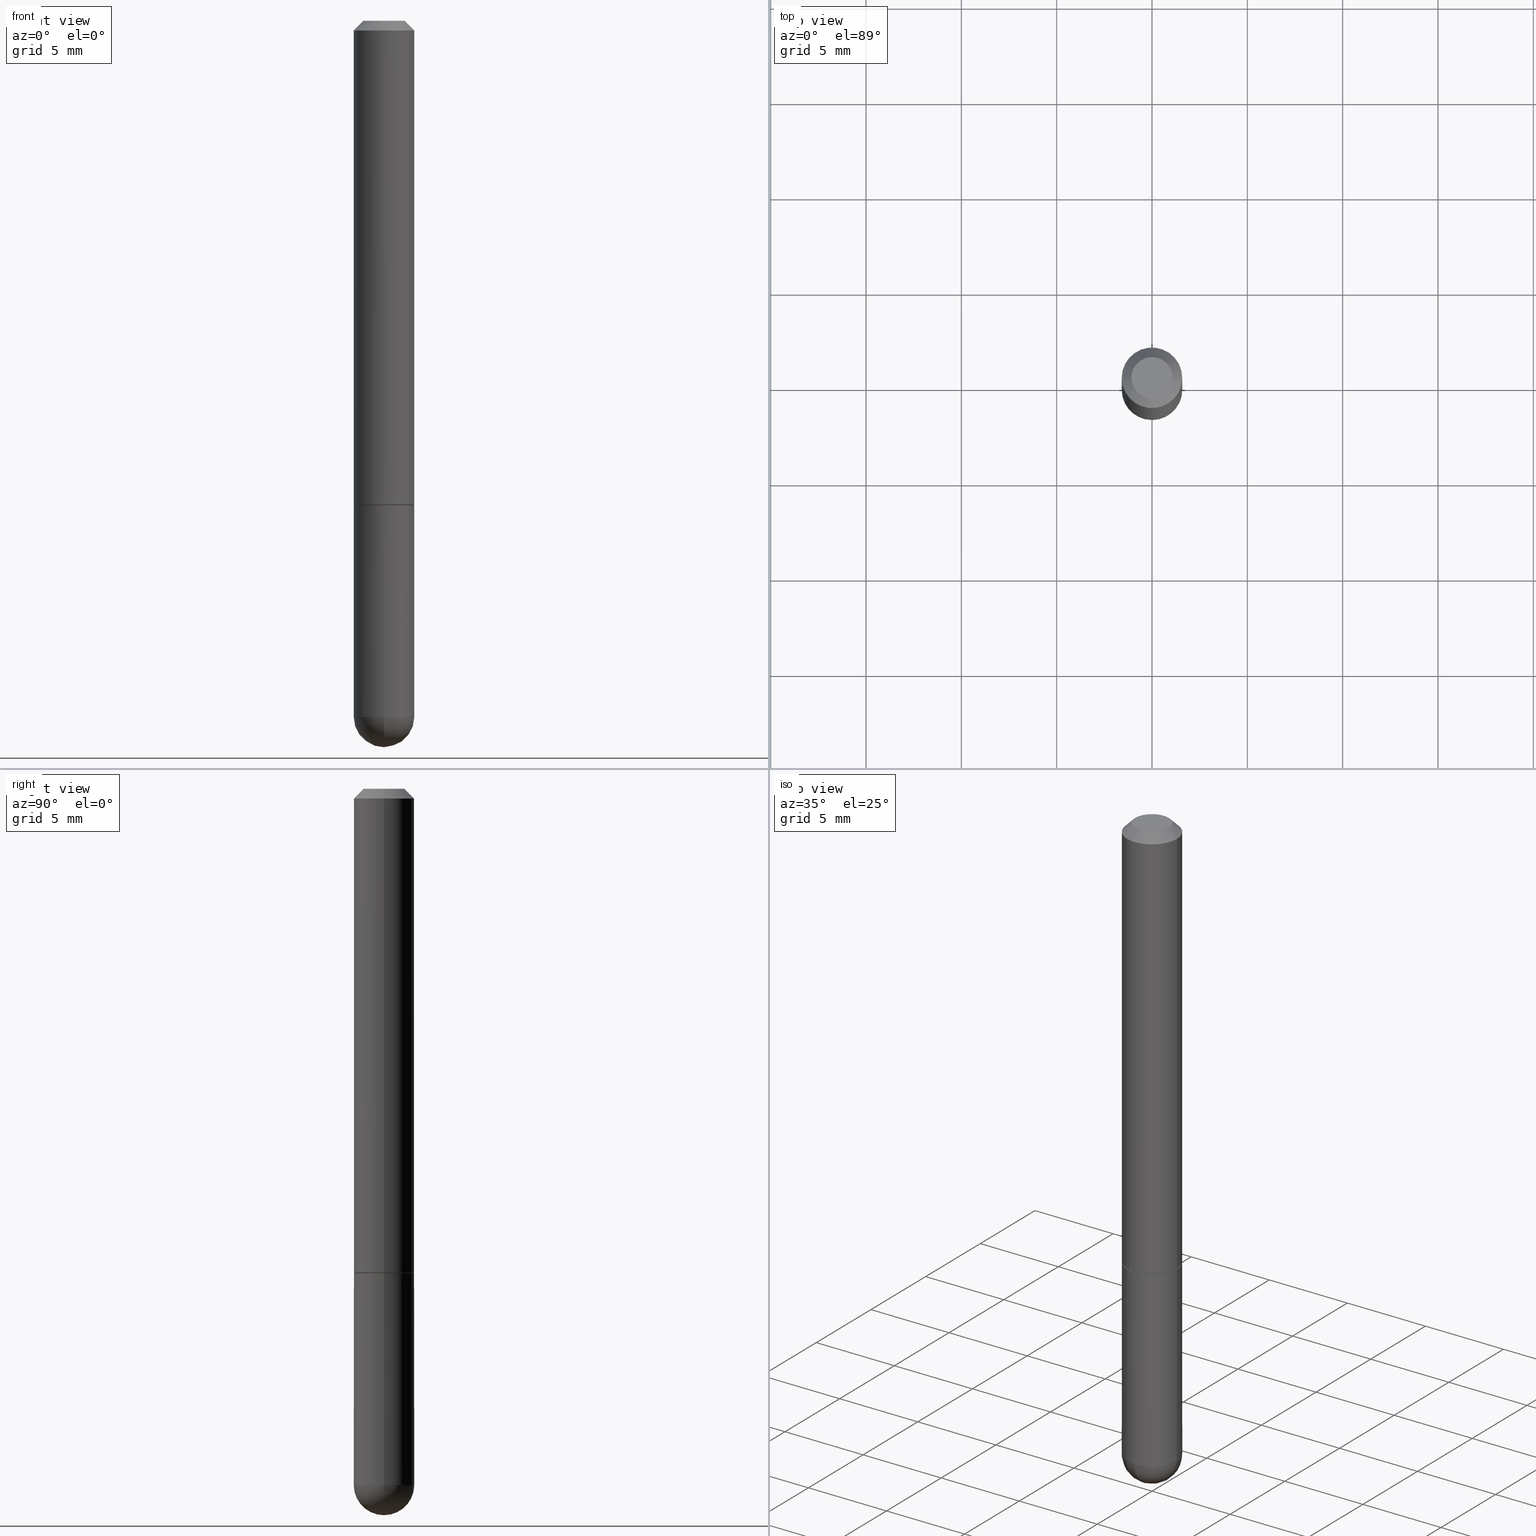
[diagram: canonical four-view strip — front | top / right | iso, engineering-drawing reading convention]
A machine part, canonical four-view strip (front | top / right | iso — engineering-drawing reading convention). The complete STEP part file that produces these views, byte-faithful:
ISO-10303-21;
HEADER;
FILE_DESCRIPTION (( 'STEP AP203' ),
    '1' );
FILE_NAME ('30904.STEP',
    '2024-02-21T16:44:44',
    ( '' ),
    ( '' ),
    'SwSTEP 2.0',
    'SolidWorks 2023',
    '' );
FILE_SCHEMA (( 'CONFIG_CONTROL_DESIGN' ));
ENDSEC;

DATA;
#1 = CARTESIAN_POINT ( 'NONE',  ( 4.890937612370289799E-31, -6.982962677686315028E-17, -0.02000000000000006981 ) ) ;
#2 = CARTESIAN_POINT ( 'NONE',  ( 2.443023337378951835E-29, -3.487989857504302970E-15, -0.9990000000000002212 ) ) ;
#3 = MANIFOLD_SOLID_BREP ( 'Body-Move/Copy2[2]', #348 ) ;
#4 = ORIENTED_EDGE ( 'NONE', *, *, #326, .F. ) ;
#5 = AXIS2_PLACEMENT_3D ( 'NONE', #233, #230, #107 ) ;
#6 = CARTESIAN_POINT ( 'NONE',  ( 0.000000000000000000, 0.000000000000000000, 0.000000000000000000 ) ) ;
#7 = EDGE_CURVE ( 'NONE', #371, #278, #324, .T. ) ;
#8 = DIRECTION ( 'NONE',  ( 1.000000000000000000, -6.982962677686269866E-15, 0.000000000000000000 ) ) ;
#9 = FACE_OUTER_BOUND ( 'NONE', #378, .T. ) ;
#10 = VERTEX_POINT ( 'NONE', #351 ) ;
#11 = VECTOR ( 'NONE', #305, 39.37007874015748143 ) ;
#12 = VECTOR ( 'NONE', #37, 39.37007874015748143 ) ;
#13 = DIRECTION ( 'NONE',  ( 1.000000000000000000, -6.982962677686266711E-15, 4.876176775795935793E-29 ) ) ;
#14 = EDGE_CURVE ( 'NONE', #289, #258, #241, .T. ) ;
#15 = APPLICATION_PROTOCOL_DEFINITION ( 'international standard', 'config_control_design', 1994, #261 ) ;
#16 = AXIS2_PLACEMENT_3D ( 'NONE', #29, #321, #267 ) ;
#17 = ORIENTED_EDGE ( 'NONE', *, *, #343, .F. ) ;
#18 = DIRECTION ( 'NONE',  ( 6.982962677686265922E-15, 1.000000000000000000, -4.370956789862807739E-15 ) ) ;
#19 = DIRECTION ( 'NONE',  ( 1.000000000000000000, 0.000000000000000000, 0.000000000000000000 ) ) ;
#20 = ORIENTED_EDGE ( 'NONE', *, *, #281, .F. ) ;
#21 = DIRECTION ( 'NONE',  ( -2.445468806185136877E-29, 3.491481338843145188E-15, 1.000000000000000000 ) ) ;
#22 = CARTESIAN_POINT ( 'NONE',  ( -5.949953061710752563E-45, 8.494956071168549013E-31, 2.433052119357234336E-16 ) ) ;
#23 = DATE_AND_TIME ( #330, #48 ) ;
#24 = APPROVAL_DATE_TIME ( #23, #119 ) ;
#25 = CARTESIAN_POINT ( 'NONE',  ( 2.445468806185136877E-29, -3.491481338843145977E-15, -1.000000000000000222 ) ) ;
#26 = AXIS2_PLACEMENT_3D ( 'NONE', #345, #369, #276 ) ;
#27 = CC_DESIGN_APPROVAL ( #255, ( #90 ) ) ;
#28 = CARTESIAN_POINT ( 'NONE',  ( -0.06250000000000000000, -3.811153671865022332E-15, -1.000000000000000222 ) ) ;
#29 = CARTESIAN_POINT ( 'NONE',  ( 0.000000000000000000, 0.000000000000000000, 0.000000000000000000 ) ) ;
#30 = ORIENTED_EDGE ( 'NONE', *, *, #364, .F. ) ;
#31 = CARTESIAN_POINT ( 'NONE',  ( 3.515361408891134418E-29, -5.019004424587023131E-15, -1.437500000000000222 ) ) ;
#32 = EDGE_CURVE ( 'NONE', #383, #155, #392, .T. ) ;
#33 = AXIS2_PLACEMENT_3D ( 'NONE', #31, #196, #294 ) ;
#34 = CARTESIAN_POINT ( 'NONE',  ( -0.06249999999999995143, 3.666055405785281740E-16, -0.02000000000000006981 ) ) ;
#35 = AXIS2_PLACEMENT_3D ( 'NONE', #76, #83, #13 ) ;
#36 = PRODUCT_DEFINITION_SHAPE ( 'NONE', 'NONE',  #213 ) ;
#37 = DIRECTION ( 'NONE',  ( -2.445468806185136877E-29, 3.491481338843145188E-15, 1.000000000000000000 ) ) ;
#38 = DIRECTION ( 'NONE',  ( 1.000000000000000000, -6.982962677686265922E-15, 4.883557194083112340E-29 ) ) ;
#39 = VERTEX_POINT ( 'NONE', #28 ) ;
#40 = DIRECTION ( 'NONE',  ( 1.000000000000000000, -6.982962677686262766E-15, 0.000000000000000000 ) ) ;
#41 = CIRCLE ( 'NONE', #98, 0.06250000000000000000 ) ;
#42 = ORIENTED_EDGE ( 'NONE', *, *, #237, .T. ) ;
#43 = DIRECTION ( 'NONE',  ( 0.000000000000000000, 0.000000000000000000, 1.000000000000000000 ) ) ;
#44 = DIRECTION ( 'NONE',  ( -2.445468806185136597E-29, 3.491481338843145583E-15, 1.000000000000000000 ) ) ;
#45 = CARTESIAN_POINT ( 'NONE',  ( 0.000000000000000000, 0.000000000000000000, 0.000000000000000000 ) ) ;
#46 = EDGE_CURVE ( 'NONE', #202, #258, #299, .T. ) ;
#47 = COORDINATED_UNIVERSAL_TIME_OFFSET ( 5, 0, .BEHIND. ) ;
#48 = LOCAL_TIME ( 11, 44, 44.00000000000000000, #362 ) ;
#49 = DIRECTION ( 'NONE',  ( 1.000000000000000000, -6.982962677686265922E-15, 4.852736867747402641E-29 ) ) ;
#50 = APPROVAL_ROLE ( '' ) ;
#51 = CARTESIAN_POINT ( 'NONE',  ( 2.445468806185136877E-29, -3.491481338843145977E-15, -1.000000000000000222 ) ) ;
#52 = PERSON_AND_ORGANIZATION_ROLE ( 'design_supplier' ) ;
#53 = FACE_OUTER_BOUND ( 'NONE', #68, .T. ) ;
#54 = AXIS2_PLACEMENT_3D ( 'NONE', #329, #291, #169 ) ;
#55 = APPROVAL_DATE_TIME ( #122, #255 ) ;
#56 = EDGE_CURVE ( 'NONE', #207, #101, #408, .T. ) ;
#57 = LINE ( 'NONE', #287, #227 ) ;
#58 = EDGE_LOOP ( 'NONE', ( #309, #260 ) ) ;
#59 = AXIS2_PLACEMENT_3D ( 'NONE', #72, #296, #8 ) ;
#60 = CC_DESIGN_APPROVAL ( #245, ( #213 ) ) ;
#61 = VERTEX_POINT ( 'NONE', #187 ) ;
#62 = CARTESIAN_POINT ( 'NONE',  ( 2.443023337378951835E-29, -3.487989857504302970E-15, -0.9990000000000002212 ) ) ;
#63 = ORIENTED_EDGE ( 'NONE', *, *, #14, .T. ) ;
#64 = ORIENTED_EDGE ( 'NONE', *, *, #56, .T. ) ;
#65 = ADVANCED_FACE ( 'NONE', ( #339 ), #366, .T. ) ;
#66 = FACE_OUTER_BOUND ( 'NONE', #411, .T. ) ;
#67 = DIRECTION ( 'NONE',  ( -2.445468806185136597E-29, 3.491481338843145583E-15, 1.000000000000000000 ) ) ;
#68 = EDGE_LOOP ( 'NONE', ( #328, #224 ) ) ;
#69 = EDGE_LOOP ( 'NONE', ( #174, #393, #360, #104 ) ) ;
#70 = CYLINDRICAL_SURFACE ( 'NONE', #106, 0.06249999999999997224 ) ;
#71 = ADVANCED_FACE ( 'NONE', ( #312 ), #164, .T. ) ;
#72 = CARTESIAN_POINT ( 'NONE',  ( 2.445468806185136877E-29, -3.491481338843145977E-15, -1.000000000000000222 ) ) ;
#73 = ORIENTED_EDGE ( 'NONE', *, *, #407, .T. ) ;
#74 = DIRECTION ( 'NONE',  ( 1.000000000000000000, -6.982962677686269866E-15, 0.000000000000000000 ) ) ;
#75 = ORIENTED_EDGE ( 'NONE', *, *, #32, .F. ) ;
#76 = CARTESIAN_POINT ( 'NONE',  ( 0.000000000000000000, 0.000000000000000000, 0.000000000000000000 ) ) ;
#77 = EDGE_CURVE ( 'NONE', #10, #39, #57, .T. ) ;
#78 = AXIS2_PLACEMENT_3D ( 'NONE', #259, #141, #388 ) ;
#79 = LOCAL_TIME ( 11, 44, 44.00000000000000000, #47 ) ;
#80 = MECHANICAL_CONTEXT ( 'NONE', #219, 'mechanical' ) ;
#81 = ADVANCED_FACE ( 'NONE', ( #53 ), #129, .F. ) ;
#82 = CARTESIAN_POINT ( 'NONE',  ( -0.06149999999999999911, -3.049199102002462361E-15, -1.000000000000000222 ) ) ;
#83 = DIRECTION ( 'NONE',  ( -2.445468806185136597E-29, 3.491481338843145583E-15, 1.000000000000000000 ) ) ;
#84 = CARTESIAN_POINT ( 'NONE',  ( -4.440892098500294840E-16, -0.06250000000000532907, -1.437500000000000000 ) ) ;
#85 = VECTOR ( 'NONE', #87, 39.37007874015748143 ) ;
#86 = AXIS2_PLACEMENT_3D ( 'NONE', #151, #43, #19 ) ;
#87 = DIRECTION ( 'NONE',  ( -2.445468806185136877E-29, 3.491481338843145188E-15, 1.000000000000000000 ) ) ;
#88 = FACE_OUTER_BOUND ( 'NONE', #69, .T. ) ;
#89 = CIRCLE ( 'NONE', #142, 0.06249999999999995143 ) ;
#90 = SECURITY_CLASSIFICATION ( '', '', #94 ) ;
#91 = COORDINATED_UNIVERSAL_TIME_OFFSET ( 5, 0, .BEHIND. ) ;
#92 = EDGE_CURVE ( 'NONE', #278, #258, #290, .T. ) ;
#93 = EDGE_LOOP ( 'NONE', ( #30, #229, #300, #363 ) ) ;
#94 = SECURITY_CLASSIFICATION_LEVEL ( 'unclassified' ) ;
#95 = FACE_OUTER_BOUND ( 'NONE', #93, .T. ) ;
#96 = ORIENTED_EDGE ( 'NONE', *, *, #237, .F. ) ;
#97 = PLANE ( 'NONE',  #157 ) ;
#98 = AXIS2_PLACEMENT_3D ( 'NONE', #51, #191, #338 ) ;
#99 =( GEOMETRIC_REPRESENTATION_CONTEXT ( 3 ) GLOBAL_UNCERTAINTY_ASSIGNED_CONTEXT ( ( #395 ) ) GLOBAL_UNIT_ASSIGNED_CONTEXT ( ( #238, #244, #209 ) ) REPRESENTATION_CONTEXT ( 'NONE', 'WORKASPACE' ) );
#100 = FACE_OUTER_BOUND ( 'NONE', #402, .T. ) ;
#101 = VERTEX_POINT ( 'NONE', #84 ) ;
#102 = DIRECTION ( 'NONE',  ( 1.000000000000000000, -6.982962677686265922E-15, 4.876176775795935793E-29 ) ) ;
#103 = PRODUCT_RELATED_PRODUCT_CATEGORY ( 'detail', '', ( #134 ) ) ;
#104 = ORIENTED_EDGE ( 'NONE', *, *, #7, .F. ) ;
#105 = FACE_OUTER_BOUND ( 'NONE', #179, .T. ) ;
#106 = AXIS2_PLACEMENT_3D ( 'NONE', #6, #201, #322 ) ;
#107 = DIRECTION ( 'NONE',  ( 1.000000000000000000, -6.982962677686268288E-15, 0.000000000000000000 ) ) ;
#108 = ORIENTED_EDGE ( 'NONE', *, *, #77, .T. ) ;
#109 = APPROVAL_DATE_TIME ( #211, #245 ) ;
#110 = ADVANCED_FACE ( 'NONE', ( #95 ), #212, .T. ) ;
#111 = APPROVAL_ROLE ( '' ) ;
#112 = ORIENTED_EDGE ( 'NONE', *, *, #32, .T. ) ;
#113 = ADVANCED_FACE ( 'NONE', ( #88 ), #286, .T. ) ;
#114 = CIRCLE ( 'NONE', #199, 0.06250000000000013878 ) ;
#115 = DIRECTION ( 'NONE',  ( 0.7071067811866199593, -2.468850131083015945E-15, 0.7071067811864750752 ) ) ;
#116 = CARTESIAN_POINT ( 'NONE',  ( 0.06149999999999999911, -3.920933543520851632E-15, -1.000000000000000222 ) ) ;
#117 = ORIENTED_EDGE ( 'NONE', *, *, #343, .T. ) ;
#118 = CARTESIAN_POINT ( 'NONE',  ( -0.06149999999999999911, -3.054497556350684369E-15, -1.000000000000000222 ) ) ;
#119 = APPROVAL ( #337, 'UNSPECIFIED' ) ;
#120 = CARTESIAN_POINT ( 'NONE',  ( 2.445468806185136877E-29, -3.491481338843145977E-15, -1.000000000000000222 ) ) ;
#121 = DIRECTION ( 'NONE',  ( -0.7071067811866199593, 7.493145998870616062E-15, 0.7071067811864750752 ) ) ;
#122 = DATE_AND_TIME ( #379, #148 ) ;
#123 = AXIS2_PLACEMENT_3D ( 'NONE', #186, #310, #251 ) ;
#124 = DIRECTION ( 'NONE',  ( -1.000000000000000000, 7.105427357601001070E-15, -4.926315508542082329E-29 ) ) ;
#125 = CARTESIAN_POINT ( 'NONE',  ( 0.06249999999999995143, -4.986107516375835278E-16, -0.02000000000000006981 ) ) ;
#126 = PERSON_AND_ORGANIZATION_ROLE ( 'classification_officer' ) ;
#127 = EDGE_CURVE ( 'NONE', #383, #278, #181, .T. ) ;
#128 = LOCAL_TIME ( 11, 44, 44.00000000000000000, #277 ) ;
#129 = PLANE ( 'NONE',  #147 ) ;
#130 = DESIGN_CONTEXT ( 'detailed design', #261, 'design' ) ;
#131 = ORIENTED_EDGE ( 'NONE', *, *, #359, .F. ) ;
#132 = CC_DESIGN_PERSON_AND_ORGANIZATION_ASSIGNMENT ( #283, #52, ( #250 ) ) ;
#133 = DIRECTION ( 'NONE',  ( -2.445468806185136597E-29, 3.491481338843145583E-15, 1.000000000000000000 ) ) ;
#134 = PRODUCT ( '30904', '30904', '', ( #80 ) ) ;
#135 = CARTESIAN_POINT ( 'NONE',  ( -0.04249999999999968386, 3.316907271900965742E-16, 2.433052119357212643E-16 ) ) ;
#136 = ORIENTED_EDGE ( 'NONE', *, *, #152, .T. ) ;
#137 = VECTOR ( 'NONE', #121, 39.37007874015748143 ) ;
#138 = CC_DESIGN_PERSON_AND_ORGANIZATION_ASSIGNMENT ( #406, #126, ( #90 ) ) ;
#139 = DIRECTION ( 'NONE',  ( 1.000000000000000000, -6.982962677686270655E-15, 0.000000000000000000 ) ) ;
#140 = CARTESIAN_POINT ( 'NONE',  ( 3.339755826017505008E-29, -5.707577355157432999E-15, -1.500000000000000222 ) ) ;
#141 = DIRECTION ( 'NONE',  ( 2.438088387897960049E-29, -3.491481338843145188E-15, -1.000000000000000000 ) ) ;
#142 = AXIS2_PLACEMENT_3D ( 'NONE', #1, #361, #173 ) ;
#143 =( LENGTH_UNIT ( ) NAMED_UNIT ( * ) SI_UNIT ( $, .METRE. ) );
#144 = ORIENTED_EDGE ( 'NONE', *, *, #231, .T. ) ;
#145 = DIRECTION ( 'NONE',  ( -2.445468806185136597E-29, 3.491481338843145583E-15, 1.000000000000000000 ) ) ;
#146 = CALENDAR_DATE ( 2024, 21, 2 ) ;
#147 = AXIS2_PLACEMENT_3D ( 'NONE', #333, #243, #248 ) ;
#148 = LOCAL_TIME ( 11, 44, 44.00000000000000000, #91 ) ;
#149 = ORIENTED_EDGE ( 'NONE', *, *, #364, .T. ) ;
#150 = DIRECTION ( 'NONE',  ( -7.105427357601001859E-15, -1.000000000000000000, 0.000000000000000000 ) ) ;
#151 = CARTESIAN_POINT ( 'NONE',  ( 0.000000000000000000, 0.000000000000000000, 0.000000000000000000 ) ) ;
#152 = EDGE_CURVE ( 'NONE', #155, #371, #403, .T. ) ;
#153 = DIRECTION ( 'NONE',  ( 1.000000000000000000, -6.982962677686269866E-15, 0.000000000000000000 ) ) ;
#154 = PERSON_AND_ORGANIZATION_ROLE ( 'creator' ) ;
#155 = VERTEX_POINT ( 'NONE', #82 ) ;
#156 = DIRECTION ( 'NONE',  ( 1.000000000000000000, -6.982962677686269866E-15, 0.000000000000000000 ) ) ;
#157 = AXIS2_PLACEMENT_3D ( 'NONE', #226, #349, #102 ) ;
#158 = EDGE_LOOP ( 'NONE', ( #270, #63, #319, #17 ) ) ;
#159 = EDGE_CURVE ( 'NONE', #289, #264, #206, .T. ) ;
#160 = CARTESIAN_POINT ( 'NONE',  ( -0.06249999999999995143, 3.666055405785281740E-16, -0.02000000000000006981 ) ) ;
#161 = AXIS2_PLACEMENT_3D ( 'NONE', #2, #67, #228 ) ;
#162 = CONICAL_SURFACE ( 'NONE', #377, 0.06149999999999999911, 0.7853981633975507526 ) ;
#163 = ORIENTED_EDGE ( 'NONE', *, *, #46, .T. ) ;
#164 = SPHERICAL_SURFACE ( 'NONE', #358, 0.06250000000000018041 ) ;
#165 = SPHERICAL_SURFACE ( 'NONE', #313, 0.06250000000000018041 ) ;
#166 = ORIENTED_EDGE ( 'NONE', *, *, #171, .T. ) ;
#167 = CARTESIAN_POINT ( 'NONE',  ( 0.06250000000000013878, -3.924425024859695428E-15, -0.9990000000000002212 ) ) ;
#168 = AXIS2_PLACEMENT_3D ( 'NONE', #45, #368, #210 ) ;
#169 = DIRECTION ( 'NONE',  ( -1.000000000000000000, 6.982962677686266711E-15, 0.000000000000000000 ) ) ;
#170 = ORIENTED_EDGE ( 'NONE', *, *, #281, .T. ) ;
#171 = EDGE_CURVE ( 'NONE', #61, #410, #404, .T. ) ;
#172 = EDGE_LOOP ( 'NONE', ( #272, #268, #96, #323 ) ) ;
#173 = DIRECTION ( 'NONE',  ( 1.000000000000000000, -6.982962677686266711E-15, 0.000000000000000000 ) ) ;
#174 = ORIENTED_EDGE ( 'NONE', *, *, #152, .F. ) ;
#175 = LINE ( 'NONE', #412, #12 ) ;
#176 = AXIS2_PLACEMENT_3D ( 'NONE', #257, #124, #150 ) ;
#177 = FACE_OUTER_BOUND ( 'NONE', #242, .T. ) ;
#178 = PERSON_AND_ORGANIZATION_ROLE ( 'creator' ) ;
#179 = EDGE_LOOP ( 'NONE', ( #75, #265 ) ) ;
#180 = PERSON_AND_ORGANIZATION_ROLE ( 'design_owner' ) ;
#181 = LINE ( 'NONE', #279, #221 ) ;
#182 = CIRCLE ( 'NONE', #384, 0.06249999999999995143 ) ;
#183 = CALENDAR_DATE ( 2024, 21, 2 ) ;
#184 = APPROVAL_PERSON_ORGANIZATION ( #284, #255, #188 ) ;
#185 = VERTEX_POINT ( 'NONE', #216 ) ;
#186 = CARTESIAN_POINT ( 'NONE',  ( 4.890937612370289799E-31, -6.982962677686315028E-17, -0.02000000000000006981 ) ) ;
#187 = CARTESIAN_POINT ( 'NONE',  ( 0.06249999999999995143, -4.691678049070475040E-15, -1.437500000000000222 ) ) ;
#188 = APPROVAL_ROLE ( '' ) ;
#189 = EDGE_CURVE ( 'NONE', #410, #39, #41, .T. ) ;
#190 = COORDINATED_UNIVERSAL_TIME_OFFSET ( 5, 0, .BEHIND. ) ;
#191 = DIRECTION ( 'NONE',  ( -2.445468806185136597E-29, 3.491481338843145583E-15, 1.000000000000000000 ) ) ;
#192 = DIRECTION ( 'NONE',  ( -1.000000000000000000, 6.982962677686265922E-15, -4.883557194083112340E-29 ) ) ;
#193 = FACE_OUTER_BOUND ( 'NONE', #58, .T. ) ;
#194 = CARTESIAN_POINT ( 'NONE',  ( 3.515361408891134418E-29, -5.019004424587023131E-15, -1.437500000000000222 ) ) ;
#195 = EDGE_LOOP ( 'NONE', ( #288, #346, #117, #163 ) ) ;
#196 = DIRECTION ( 'NONE',  ( -2.445468806185136597E-29, 3.491481338843145583E-15, 1.000000000000000000 ) ) ;
#197 = EDGE_CURVE ( 'NONE', #264, #289, #331, .T. ) ;
#198 = VECTOR ( 'NONE', #382, 39.37007874015748143 ) ;
#199 = AXIS2_PLACEMENT_3D ( 'NONE', #62, #133, #139 ) ;
#200 = CIRCLE ( 'NONE', #409, 0.06250000000000018041 ) ;
#201 = DIRECTION ( 'NONE',  ( -2.445468806185136597E-29, 3.491481338843145583E-15, 1.000000000000000000 ) ) ;
#202 = VERTEX_POINT ( 'NONE', #160 ) ;
#203 = FACE_OUTER_BOUND ( 'NONE', #240, .T. ) ;
#204 = CC_DESIGN_PERSON_AND_ORGANIZATION_ASSIGNMENT ( #334, #178, ( #213 ) ) ;
#205 = PERSON_AND_ORGANIZATION ( #340, #307 ) ;
#206 = CIRCLE ( 'NONE', #341, 0.04249999999999968386 ) ;
#207 = VERTEX_POINT ( 'NONE', #140 ) ;
#208 = CC_DESIGN_DATE_AND_TIME_ASSIGNMENT ( #247, #370, ( #213 ) ) ;
#209 =( NAMED_UNIT ( * ) SI_UNIT ( $, .STERADIAN. ) SOLID_ANGLE_UNIT ( ) );
#210 = DIRECTION ( 'NONE',  ( 1.000000000000000000, -6.982962677686266711E-15, 4.876176775795935793E-29 ) ) ;
#211 = DATE_AND_TIME ( #146, #128 ) ;
#212 = CYLINDRICAL_SURFACE ( 'NONE', #168, 0.06250000000000004163 ) ;
#213 = PRODUCT_DEFINITION ( 'UNKNOWN', '', #250, #130 ) ;
#214 = PERSON_AND_ORGANIZATION ( #340, #307 ) ;
#215 = AXIS2_PLACEMENT_3D ( 'NONE', #120, #145, #40 ) ;
#216 = CARTESIAN_POINT ( 'NONE',  ( 4.364351673554256397E-16, 0.06249999999999480971, -1.437500000000000444 ) ) ;
#217 = DIRECTION ( 'NONE',  ( -2.445468806185136597E-29, 3.491481338843145583E-15, 1.000000000000000000 ) ) ;
#218 = ADVANCED_FACE ( 'NONE', ( #105 ), #97, .F. ) ;
#219 = APPLICATION_CONTEXT ( 'configuration controlled 3d designs of mechanical parts and assemblies' ) ;
#220 = DATE_TIME_ROLE ( 'classification_date' ) ;
#221 = VECTOR ( 'NONE', #115, 39.37007874015748143 ) ;
#222 = CC_DESIGN_APPROVAL ( #119, ( #250 ) ) ;
#223 = ORIENTED_EDGE ( 'NONE', *, *, #127, .F. ) ;
#224 = ORIENTED_EDGE ( 'NONE', *, *, #159, .T. ) ;
#225 = DIRECTION ( 'NONE',  ( -2.445468806185136597E-29, 3.491481338843145583E-15, 1.000000000000000000 ) ) ;
#226 = CARTESIAN_POINT ( 'NONE',  ( 2.445468806185136877E-29, -3.491481338843145977E-15, -1.000000000000000222 ) ) ;
#227 = VECTOR ( 'NONE', #21, 39.37007874015748143 ) ;
#228 = DIRECTION ( 'NONE',  ( 1.000000000000000000, -6.982962677686270655E-15, 0.000000000000000000 ) ) ;
#229 = ORIENTED_EDGE ( 'NONE', *, *, #7, .T. ) ;
#230 = DIRECTION ( 'NONE',  ( -2.445468806185136597E-29, 3.491481338843145583E-15, 1.000000000000000000 ) ) ;
#231 = EDGE_CURVE ( 'NONE', #101, #61, #182, .T. ) ;
#232 = CARTESIAN_POINT ( 'NONE',  ( 3.184241630977247611E-29, -5.493186792727071849E-15, -1.437500000000000000 ) ) ;
#233 = CARTESIAN_POINT ( 'NONE',  ( 3.515361408891134418E-29, -5.019004424587023131E-15, -1.437500000000000222 ) ) ;
#234 = CLOSED_SHELL ( 'NONE', ( #266, #285, #71, #274, #332 ) ) ;
#235 = CIRCLE ( 'NONE', #367, 0.06249999999999995143 ) ;
#236 = FACE_OUTER_BOUND ( 'NONE', #195, .T. ) ;
#237 = EDGE_CURVE ( 'NONE', #61, #185, #263, .T. ) ;
#238 =( CONVERSION_BASED_UNIT ( 'INCH', #273 ) LENGTH_UNIT ( ) NAMED_UNIT ( #353 ) );
#239 = CARTESIAN_POINT ( 'NONE',  ( 3.515361408891134418E-29, -5.019004424587023131E-15, -1.437500000000000222 ) ) ;
#240 = EDGE_LOOP ( 'NONE', ( #131, #64, #387, #292 ) ) ;
#241 = LINE ( 'NONE', #125, #256 ) ;
#242 = EDGE_LOOP ( 'NONE', ( #112, #136, #20, #223 ) ) ;
#243 = DIRECTION ( 'NONE',  ( 2.438088387897960049E-29, -3.491481338843145188E-15, -1.000000000000000000 ) ) ;
#244 =( NAMED_UNIT ( * ) PLANE_ANGLE_UNIT ( ) SI_UNIT ( $, .RADIAN. ) );
#245 = APPROVAL ( #298, 'UNSPECIFIED' ) ;
#246 = CARTESIAN_POINT ( 'NONE',  ( 0.06250000000000004163, -4.364351673553919652E-16, 3.047610484872461972E-30 ) ) ;
#247 = DATE_AND_TIME ( #183, #79 ) ;
#248 = DIRECTION ( 'NONE',  ( -1.000000000000000000, 6.982962677686265922E-15, -4.876176775795935793E-29 ) ) ;
#249 = CONICAL_SURFACE ( 'NONE', #54, 0.06249999999999995143, 0.7853981633974471688 ) ;
#250 = PRODUCT_DEFINITION_FORMATION_WITH_SPECIFIED_SOURCE ( 'ANY', '', #134, .NOT_KNOWN. ) ;
#251 = DIRECTION ( 'NONE',  ( -1.000000000000000000, 6.982962677686266711E-15, 0.000000000000000000 ) ) ;
#252 = SHAPE_DEFINITION_REPRESENTATION ( #36, #254 ) ;
#253 = CALENDAR_DATE ( 2024, 21, 2 ) ;
#254 = ADVANCED_BREP_SHAPE_REPRESENTATION ( '30904', ( #400, #3, #86 ), #99 ) ;
#255 = APPROVAL ( #342, 'UNSPECIFIED' ) ;
#256 = VECTOR ( 'NONE', #380, 39.37007874015748143 ) ;
#257 = CARTESIAN_POINT ( 'NONE',  ( 3.184241630977247611E-29, -5.493186792727071849E-15, -1.437500000000000000 ) ) ;
#258 = VERTEX_POINT ( 'NONE', #297 ) ;
#259 = CARTESIAN_POINT ( 'NONE',  ( 4.364351673554160748E-16, 0.06249999999999650974, -1.000000000000000444 ) ) ;
#260 = ORIENTED_EDGE ( 'NONE', *, *, #381, .T. ) ;
#261 = APPLICATION_CONTEXT ( 'configuration controlled 3d designs of mechanical parts and assemblies' ) ;
#262 = DIRECTION ( 'NONE',  ( 6.982962677686266711E-15, 1.000000000000000000, 0.000000000000000000 ) ) ;
#263 = CIRCLE ( 'NONE', #5, 0.06249999999999995143 ) ;
#264 = VERTEX_POINT ( 'NONE', #135 ) ;
#265 = ORIENTED_EDGE ( 'NONE', *, *, #356, .F. ) ;
#266 = ADVANCED_FACE ( 'NONE', ( #66 ), #318, .T. ) ;
#267 = DIRECTION ( 'NONE',  ( 1.000000000000000000, -6.982962677686266711E-15, 4.876176775795935793E-29 ) ) ;
#268 = ORIENTED_EDGE ( 'NONE', *, *, #359, .T. ) ;
#269 = LINE ( 'NONE', #34, #198 ) ;
#270 = ORIENTED_EDGE ( 'NONE', *, *, #159, .F. ) ;
#271 = DIRECTION ( 'NONE',  ( -2.445468806185136597E-29, 3.491481338843145583E-15, 1.000000000000000000 ) ) ;
#272 = ORIENTED_EDGE ( 'NONE', *, *, #56, .F. ) ;
#273 = LENGTH_MEASURE_WITH_UNIT ( LENGTH_MEASURE( 0.02539999999999999897 ), #143 );
#274 = ADVANCED_FACE ( 'NONE', ( #193 ), #355, .F. ) ;
#275 = PERSON_AND_ORGANIZATION ( #340, #307 ) ;
#276 = DIRECTION ( 'NONE',  ( 1.000000000000000000, -6.982962677686266711E-15, 0.000000000000000000 ) ) ;
#277 = COORDINATED_UNIVERSAL_TIME_OFFSET ( 5, 0, .BEHIND. ) ;
#278 = VERTEX_POINT ( 'NONE', #167 ) ;
#279 = CARTESIAN_POINT ( 'NONE',  ( 0.06149999999999999911, -3.920933543520851632E-15, -1.000000000000000222 ) ) ;
#280 = DATE_AND_TIME ( #253, #325 ) ;
#281 = EDGE_CURVE ( 'NONE', #278, #371, #114, .T. ) ;
#282 = CARTESIAN_POINT ( 'NONE',  ( 3.184241630977247611E-29, -5.493186792727071849E-15, -1.437500000000000000 ) ) ;
#283 = PERSON_AND_ORGANIZATION ( #340, #307 ) ;
#284 = PERSON_AND_ORGANIZATION ( #340, #307 ) ;
#285 = ADVANCED_FACE ( 'NONE', ( #203 ), #165, .T. ) ;
#286 = CONICAL_SURFACE ( 'NONE', #373, 0.06149999999999999911, 0.7853981633975507526 ) ;
#287 = CARTESIAN_POINT ( 'NONE',  ( -0.06249999999999997224, 4.440892098500624190E-16, -3.074334431409315063E-30 ) ) ;
#288 = ORIENTED_EDGE ( 'NONE', *, *, #14, .F. ) ;
#289 = VERTEX_POINT ( 'NONE', #357 ) ;
#290 = LINE ( 'NONE', #246, #11 ) ;
#291 = DIRECTION ( 'NONE',  ( 2.445468806185136597E-29, -3.491481338843145583E-15, -1.000000000000000000 ) ) ;
#292 = ORIENTED_EDGE ( 'NONE', *, *, #317, .F. ) ;
#293 = ORIENTED_EDGE ( 'NONE', *, *, #77, .F. ) ;
#294 = DIRECTION ( 'NONE',  ( 1.000000000000000000, -6.982962677686268288E-15, 0.000000000000000000 ) ) ;
#295 = CIRCLE ( 'NONE', #59, 0.06149999999999999911 ) ;
#296 = DIRECTION ( 'NONE',  ( -2.445468806185136597E-29, 3.491481338843145583E-15, 1.000000000000000000 ) ) ;
#297 = CARTESIAN_POINT ( 'NONE',  ( 0.06249999999999995143, -4.986107516375835278E-16, -0.02000000000000006981 ) ) ;
#298 = APPROVAL_STATUS ( 'not_yet_approved' ) ;
#299 = CIRCLE ( 'NONE', #26, 0.06249999999999995143 ) ;
#300 = ORIENTED_EDGE ( 'NONE', *, *, #92, .T. ) ;
#301 = CC_DESIGN_SECURITY_CLASSIFICATION ( #90, ( #250 ) ) ;
#302 = CARTESIAN_POINT ( 'NONE',  ( 0.06250000000000000000, -3.927916506198537646E-15, -1.000000000000000222 ) ) ;
#303 = CYLINDRICAL_SURFACE ( 'NONE', #35, 0.06250000000000004163 ) ;
#304 = DIRECTION ( 'NONE',  ( -2.445468806185136597E-29, 3.491481338843145583E-15, 1.000000000000000000 ) ) ;
#305 = DIRECTION ( 'NONE',  ( -2.445468806185136877E-29, 3.491481338843145188E-15, 1.000000000000000000 ) ) ;
#306 = AXIS2_PLACEMENT_3D ( 'NONE', #25, #316, #156 ) ;
#307 = ORGANIZATION ( 'UNSPECIFIED', 'UNSPECIFIED', '' ) ;
#308 = CC_DESIGN_PERSON_AND_ORGANIZATION_ASSIGNMENT ( #311, #154, ( #250 ) ) ;
#309 = ORIENTED_EDGE ( 'NONE', *, *, #189, .T. ) ;
#310 = DIRECTION ( 'NONE',  ( 2.445468806185136597E-29, -3.491481338843145583E-15, -1.000000000000000000 ) ) ;
#311 = PERSON_AND_ORGANIZATION ( #340, #307 ) ;
#312 = FACE_OUTER_BOUND ( 'NONE', #172, .T. ) ;
#313 = AXIS2_PLACEMENT_3D ( 'NONE', #232, #390, #391 ) ;
#314 = CC_DESIGN_PERSON_AND_ORGANIZATION_ASSIGNMENT ( #205, #180, ( #134 ) ) ;
#315 = DIRECTION ( 'NONE',  ( 1.000000000000000000, -6.982962677686265922E-15, 4.852736867747402641E-29 ) ) ;
#316 = DIRECTION ( 'NONE',  ( -2.445468806185136597E-29, 3.491481338843145583E-15, 1.000000000000000000 ) ) ;
#317 = EDGE_CURVE ( 'NONE', #185, #10, #398, .T. ) ;
#318 = CYLINDRICAL_SURFACE ( 'NONE', #16, 0.06249999999999997224 ) ;
#319 = ORIENTED_EDGE ( 'NONE', *, *, #326, .T. ) ;
#320 = ORIENTED_EDGE ( 'NONE', *, *, #381, .F. ) ;
#321 = DIRECTION ( 'NONE',  ( -2.445468806185136597E-29, 3.491481338843145583E-15, 1.000000000000000000 ) ) ;
#322 = DIRECTION ( 'NONE',  ( 1.000000000000000000, -6.982962677686266711E-15, 4.876176775795935793E-29 ) ) ;
#323 = ORIENTED_EDGE ( 'NONE', *, *, #231, .F. ) ;
#324 = CIRCLE ( 'NONE', #161, 0.06250000000000013878 ) ;
#325 = LOCAL_TIME ( 11, 44, 44.00000000000000000, #190 ) ;
#326 = EDGE_CURVE ( 'NONE', #258, #202, #89, .T. ) ;
#327 = CARTESIAN_POINT ( 'NONE',  ( 3.184241630977247611E-29, -5.493186792727071849E-15, -1.437500000000000000 ) ) ;
#328 = ORIENTED_EDGE ( 'NONE', *, *, #197, .T. ) ;
#329 = CARTESIAN_POINT ( 'NONE',  ( 4.890937612370289799E-31, -6.982962677686315028E-17, -0.02000000000000006981 ) ) ;
#330 = CALENDAR_DATE ( 2024, 21, 2 ) ;
#331 = CIRCLE ( 'NONE', #376, 0.04249999999999968386 ) ;
#332 = ADVANCED_FACE ( 'NONE', ( #9 ), #70, .T. ) ;
#333 = CARTESIAN_POINT ( 'NONE',  ( 2.967759138016640869E-16, 0.04249999999999968386, -2.673535093297085050E-17 ) ) ;
#334 = PERSON_AND_ORGANIZATION ( #340, #307 ) ;
#335 = CARTESIAN_POINT ( 'NONE',  ( 2.445468806185136877E-29, -3.491481338843145977E-15, -1.000000000000000222 ) ) ;
#336 = APPROVAL_PERSON_ORGANIZATION ( #275, #245, #111 ) ;
#337 = APPROVAL_STATUS ( 'not_yet_approved' ) ;
#338 = DIRECTION ( 'NONE',  ( 1.000000000000000000, -6.982962677686262766E-15, 0.000000000000000000 ) ) ;
#339 = FACE_OUTER_BOUND ( 'NONE', #158, .T. ) ;
#340 = PERSON ( 'UNSPECIFIED', 'UNSPECIFIED', 'UNSPECIFIED', ('UNSPECIFIED'), ('UNSPECIFIED'), ('UNSPECIFIED') ) ;
#341 = AXIS2_PLACEMENT_3D ( 'NONE', #22, #405, #49 ) ;
#342 = APPROVAL_STATUS ( 'not_yet_approved' ) ;
#343 = EDGE_CURVE ( 'NONE', #264, #202, #269, .T. ) ;
#344 = ORIENTED_EDGE ( 'NONE', *, *, #171, .F. ) ;
#345 = CARTESIAN_POINT ( 'NONE',  ( 4.890937612370289799E-31, -6.982962677686315028E-17, -0.02000000000000006981 ) ) ;
#346 = ORIENTED_EDGE ( 'NONE', *, *, #197, .F. ) ;
#347 = ADVANCED_FACE ( 'NONE', ( #236 ), #249, .T. ) ;
#348 = CLOSED_SHELL ( 'NONE', ( #401, #375, #65, #347, #110, #113, #218, #81 ) ) ;
#349 = DIRECTION ( 'NONE',  ( -2.438088387897960049E-29, 3.491481338843145188E-15, 1.000000000000000000 ) ) ;
#350 = CIRCLE ( 'NONE', #215, 0.06250000000000000000 ) ;
#351 = CARTESIAN_POINT ( 'NONE',  ( -0.06249999999999995143, -3.811153671865022332E-15, -1.437500000000000222 ) ) ;
#352 = ORIENTED_EDGE ( 'NONE', *, *, #189, .F. ) ;
#353 = DIMENSIONAL_EXPONENTS ( 1.000000000000000000, 0.000000000000000000, 0.000000000000000000, 0.000000000000000000, 0.000000000000000000, 0.000000000000000000, 0.000000000000000000 ) ;
#354 = DIRECTION ( 'NONE',  ( 1.000000000000000000, -6.982962677686268288E-15, 0.000000000000000000 ) ) ;
#355 = PLANE ( 'NONE',  #78 ) ;
#356 = EDGE_CURVE ( 'NONE', #155, #383, #295, .T. ) ;
#357 = CARTESIAN_POINT ( 'NONE',  ( 0.04249999999999968386, -3.950909582714352654E-16, 2.433052119357258495E-16 ) ) ;
#358 = AXIS2_PLACEMENT_3D ( 'NONE', #282, #192, #18 ) ;
#359 = EDGE_CURVE ( 'NONE', #207, #185, #200, .T. ) ;
#360 = ORIENTED_EDGE ( 'NONE', *, *, #127, .T. ) ;
#361 = DIRECTION ( 'NONE',  ( -2.445468806185136597E-29, 3.491481338843145583E-15, 1.000000000000000000 ) ) ;
#362 = COORDINATED_UNIVERSAL_TIME_OFFSET ( 5, 0, .BEHIND. ) ;
#363 = ORIENTED_EDGE ( 'NONE', *, *, #46, .F. ) ;
#364 = EDGE_CURVE ( 'NONE', #371, #202, #175, .T. ) ;
#365 = DIRECTION ( 'NONE',  ( 1.000000000000000000, -6.982962677686268288E-15, 0.000000000000000000 ) ) ;
#366 = CONICAL_SURFACE ( 'NONE', #123, 0.06249999999999995143, 0.7853981633974471688 ) ;
#367 = AXIS2_PLACEMENT_3D ( 'NONE', #239, #44, #365 ) ;
#368 = DIRECTION ( 'NONE',  ( -2.445468806185136597E-29, 3.491481338843145583E-15, 1.000000000000000000 ) ) ;
#369 = DIRECTION ( 'NONE',  ( -2.445468806185136597E-29, 3.491481338843145583E-15, 1.000000000000000000 ) ) ;
#370 = DATE_TIME_ROLE ( 'creation_date' ) ;
#371 = VERTEX_POINT ( 'NONE', #385 ) ;
#372 = CARTESIAN_POINT ( 'NONE',  ( 0.06249999999999997224, -4.364351673553914722E-16, 3.047610484872458469E-30 ) ) ;
#373 = AXIS2_PLACEMENT_3D ( 'NONE', #335, #225, #153 ) ;
#374 = CARTESIAN_POINT ( 'NONE',  ( -5.949953061710752563E-45, 8.494956071168549013E-31, 2.433052119357234336E-16 ) ) ;
#375 = ADVANCED_FACE ( 'NONE', ( #100 ), #303, .T. ) ;
#376 = AXIS2_PLACEMENT_3D ( 'NONE', #374, #217, #315 ) ;
#377 = AXIS2_PLACEMENT_3D ( 'NONE', #394, #304, #74 ) ;
#378 = EDGE_LOOP ( 'NONE', ( #293, #73, #144, #166, #320 ) ) ;
#379 = CALENDAR_DATE ( 2024, 21, 2 ) ;
#380 = DIRECTION ( 'NONE',  ( 0.7071067811865466846, -7.319954787623252890E-15, -0.7071067811865483499 ) ) ;
#381 = EDGE_CURVE ( 'NONE', #39, #410, #350, .T. ) ;
#382 = DIRECTION ( 'NONE',  ( -0.7071067811865466846, 2.468850131082247989E-15, -0.7071067811865483499 ) ) ;
#383 = VERTEX_POINT ( 'NONE', #116 ) ;
#384 = AXIS2_PLACEMENT_3D ( 'NONE', #194, #271, #354 ) ;
#385 = CARTESIAN_POINT ( 'NONE',  ( -0.06250000000000013878, -1.334820532290516771E-15, -0.9990000000000002212 ) ) ;
#386 = ORIENTED_EDGE ( 'NONE', *, *, #92, .F. ) ;
#387 = ORIENTED_EDGE ( 'NONE', *, *, #407, .F. ) ;
#388 = DIRECTION ( 'NONE',  ( -1.000000000000000000, 6.982962677686265922E-15, -4.876176775795935793E-29 ) ) ;
#389 = ORIENTED_EDGE ( 'NONE', *, *, #317, .T. ) ;
#390 = DIRECTION ( 'NONE',  ( -1.000000000000000000, 6.982962677686265922E-15, -4.883557194083112340E-29 ) ) ;
#391 = DIRECTION ( 'NONE',  ( 6.982962677686265922E-15, 1.000000000000000000, -4.370956789862807739E-15 ) ) ;
#392 = CIRCLE ( 'NONE', #306, 0.06149999999999999911 ) ;
#393 = ORIENTED_EDGE ( 'NONE', *, *, #356, .T. ) ;
#394 = CARTESIAN_POINT ( 'NONE',  ( 2.445468806185136877E-29, -3.491481338843145977E-15, -1.000000000000000222 ) ) ;
#395 = UNCERTAINTY_MEASURE_WITH_UNIT (LENGTH_MEASURE( 1.000000000000000082E-05 ), #238, 'distance_accuracy_value', 'NONE');
#396 = APPLICATION_PROTOCOL_DEFINITION ( 'international standard', 'config_control_design', 1994, #219 ) ;
#397 = CC_DESIGN_DATE_AND_TIME_ASSIGNMENT ( #280, #220, ( #90 ) ) ;
#398 = CIRCLE ( 'NONE', #33, 0.06249999999999995143 ) ;
#399 = APPROVAL_PERSON_ORGANIZATION ( #214, #119, #50 ) ;
#400 = MANIFOLD_SOLID_BREP ( 'Body-Move/Copy2[1]', #234 ) ;
#401 = ADVANCED_FACE ( 'NONE', ( #177 ), #162, .T. ) ;
#402 = EDGE_LOOP ( 'NONE', ( #170, #149, #4, #386 ) ) ;
#403 = LINE ( 'NONE', #118, #137 ) ;
#404 = LINE ( 'NONE', #372, #85 ) ;
#405 = DIRECTION ( 'NONE',  ( -2.445468806185136597E-29, 3.491481338843145583E-15, 1.000000000000000000 ) ) ;
#406 = PERSON_AND_ORGANIZATION ( #340, #307 ) ;
#407 = EDGE_CURVE ( 'NONE', #10, #101, #235, .T. ) ;
#408 = CIRCLE ( 'NONE', #176, 0.06250000000000018041 ) ;
#409 = AXIS2_PLACEMENT_3D ( 'NONE', #327, #38, #262 ) ;
#410 = VERTEX_POINT ( 'NONE', #302 ) ;
#411 = EDGE_LOOP ( 'NONE', ( #389, #108, #352, #344, #42 ) ) ;
#412 = CARTESIAN_POINT ( 'NONE',  ( -0.06250000000000004163, 4.440892098500629120E-16, -3.074334431409318216E-30 ) ) ;
ENDSEC;
END-ISO-10303-21;
